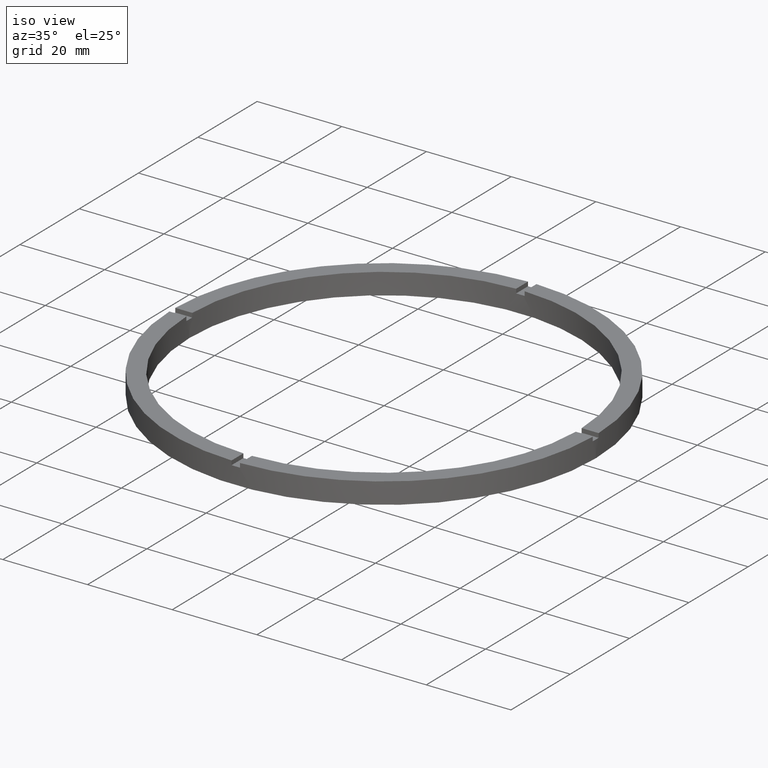
[diagram: clean part render]
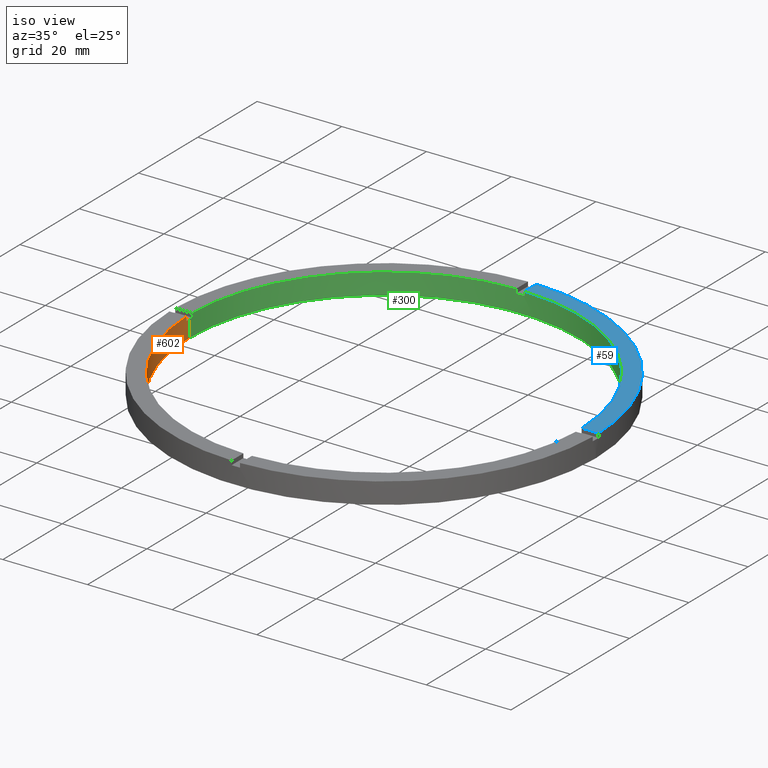
[diagram: same view with three faces highlighted in distinct colors, each labeled with its STEP entity id]
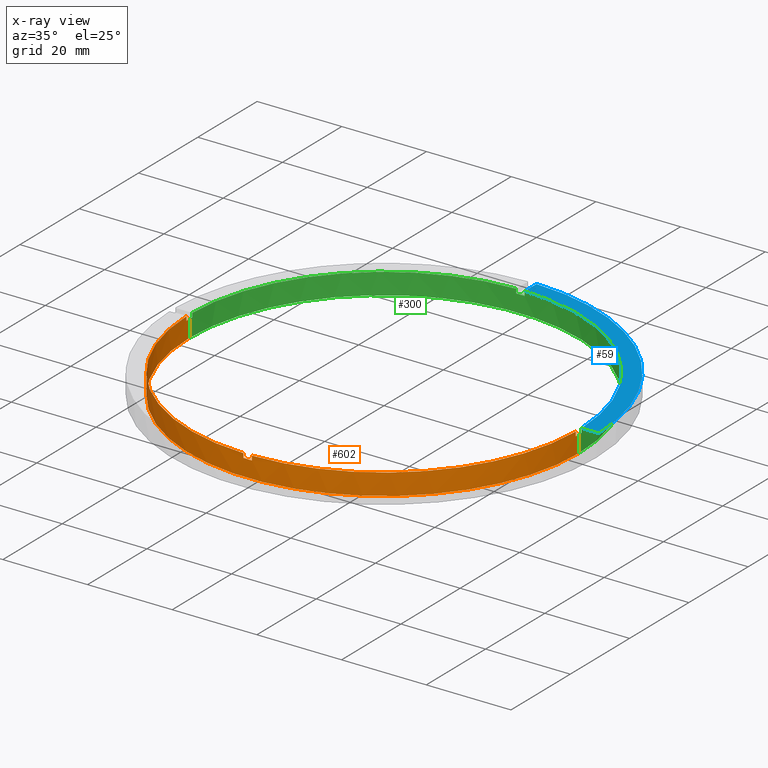
[diagram: x-ray of the same camera — body ghosted, the three highlighted faces saturated]
A machine part, iso view with three faces highlighted in distinct colors.
The next image is the same camera in x-ray (body ghosted, the three faces saturated) — at least one of them is partly hidden behind the body in this view.
Their STEP definitions:

[orange] entity #602 — the highlighted cylindrical surface (partial cylindrical patch) has radius 46 mm, axis along (-0, -0, -1).
#9 = DIRECTION ( 'NONE',  ( -0.000000000000000000, -0.000000000000000000, -1.000000000000000000 ) ) ;
#14 = AXIS2_PLACEMENT_3D ( 'NONE', #475, #694, #90 ) ;
#27 = ORIENTED_EDGE ( 'NONE', *, *, #72, .F. ) ;
#32 = LINE ( 'NONE', #218, #37 ) ;
#34 = CARTESIAN_POINT ( 'NONE',  ( -46.00000000000000000, 0.000000000000000000, 0.000000000000000000 ) ) ;
#37 = VECTOR ( 'NONE', #276, 1000.000000000000000 ) ;
#39 = EDGE_CURVE ( 'NONE', #370, #166, #581, .T. ) ;
#52 = EDGE_CURVE ( 'NONE', #133, #107, #32, .T. ) ;
#58 = DIRECTION ( 'NONE',  ( 1.000000000000000000, 0.000000000000000000, 0.000000000000000000 ) ) ;
#72 = EDGE_CURVE ( 'NONE', #727, #690, #302, .T. ) ;
#79 = AXIS2_PLACEMENT_3D ( 'NONE', #355, #606, #658 ) ;
#81 = CARTESIAN_POINT ( 'NONE',  ( -1.000000000000157208, -45.98912915026767223, 5.000000000000000000 ) ) ;
#83 = CARTESIAN_POINT ( 'NONE',  ( 0.000000000000000000, 0.000000000000000000, 4.000000000000000000 ) ) ;
#88 = CARTESIAN_POINT ( 'NONE',  ( 45.98912915026767223, -1.000000000000155431, 4.000000000000000000 ) ) ;
#90 = DIRECTION ( 'NONE',  ( 1.000000000000000000, 0.000000000000000000, 0.000000000000000000 ) ) ;
#91 = CARTESIAN_POINT ( 'NONE',  ( 0.000000000000000000, 0.000000000000000000, 4.000000000000000000 ) ) ;
#102 = VERTEX_POINT ( 'NONE', #34 ) ;
#107 = VERTEX_POINT ( 'NONE', #461 ) ;
#117 = VERTEX_POINT ( 'NONE', #216 ) ;
#129 = CARTESIAN_POINT ( 'NONE',  ( 46.00000000000000000, 5.633375276077824704E-15, 4.000000000000000000 ) ) ;
#133 = VERTEX_POINT ( 'NONE', #129 ) ;
#138 = DIRECTION ( 'NONE',  ( 1.000000000000000000, 0.000000000000000000, 0.000000000000000000 ) ) ;
#139 = DIRECTION ( 'NONE',  ( 0.000000000000000000, 0.000000000000000000, 1.000000000000000000 ) ) ;
#144 = EDGE_CURVE ( 'NONE', #562, #638, #308, .T. ) ;
#150 = DIRECTION ( 'NONE',  ( 0.000000000000000000, 0.000000000000000000, 1.000000000000000000 ) ) ;
#158 = DIRECTION ( 'NONE',  ( -0.000000000000000000, -0.000000000000000000, -1.000000000000000000 ) ) ;
#166 = VERTEX_POINT ( 'NONE', #81 ) ;
#167 = CIRCLE ( 'NONE', #79, 46.00000000000000000 ) ;
#172 = CARTESIAN_POINT ( 'NONE',  ( -1.000000000000157208, -45.98912915026767223, 5.000000000000000000 ) ) ;
#187 = ORIENTED_EDGE ( 'NONE', *, *, #338, .T. ) ;
#204 = ORIENTED_EDGE ( 'NONE', *, *, #732, .T. ) ;
#216 = CARTESIAN_POINT ( 'NONE',  ( -46.00000000000000000, 0.000000000000000000, 4.000000000000000000 ) ) ;
#218 = CARTESIAN_POINT ( 'NONE',  ( 46.00000000000000000, 5.633375276077824704E-15, 5.000000000000000000 ) ) ;
#228 = CIRCLE ( 'NONE', #266, 46.00000000000000000 ) ;
#231 = LINE ( 'NONE', #172, #232 ) ;
#232 = VECTOR ( 'NONE', #397, 1000.000000000000000 ) ;
#237 = CARTESIAN_POINT ( 'NONE',  ( -45.98912915026767223, -1.000000000000030642, 4.000000000000000000 ) ) ;
#241 = CIRCLE ( 'NONE', #14, 46.00000000000000000 ) ;
#266 = AXIS2_PLACEMENT_3D ( 'NONE', #585, #486, #58 ) ;
#276 = DIRECTION ( 'NONE',  ( -0.000000000000000000, -0.000000000000000000, -1.000000000000000000 ) ) ;
#302 = LINE ( 'NONE', #322, #565 ) ;
#308 = LINE ( 'NONE', #535, #325 ) ;
#322 = CARTESIAN_POINT ( 'NONE',  ( 0.9999999999998427924, -45.98912915026767934, 5.000000000000000000 ) ) ;
#325 = VECTOR ( 'NONE', #150, 1000.000000000000000 ) ;
#338 = EDGE_CURVE ( 'NONE', #562, #133, #778, .T. ) ;
#342 = DIRECTION ( 'NONE',  ( -1.000000000000000000, 0.000000000000000000, 0.000000000000000000 ) ) ;
#348 = DIRECTION ( 'NONE',  ( -0.000000000000000000, -0.000000000000000000, -1.000000000000000000 ) ) ;
#349 = DIRECTION ( 'NONE',  ( 0.000000000000000000, 0.000000000000000000, 1.000000000000000000 ) ) ;
#355 = CARTESIAN_POINT ( 'NONE',  ( 0.000000000000000000, 0.000000000000000000, 4.000000000000000000 ) ) ;
#370 = VERTEX_POINT ( 'NONE', #605 ) ;
#375 = CARTESIAN_POINT ( 'NONE',  ( 0.000000000000000000, 0.000000000000000000, 5.000000000000000000 ) ) ;
#389 = EDGE_CURVE ( 'NONE', #370, #410, #749, .T. ) ;
#396 = EDGE_CURVE ( 'NONE', #399, #166, #231, .T. ) ;
#397 = DIRECTION ( 'NONE',  ( 0.000000000000000000, 0.000000000000000000, 1.000000000000000000 ) ) ;
#399 = VERTEX_POINT ( 'NONE', #601 ) ;
#401 = EDGE_CURVE ( 'NONE', #117, #102, #748, .T. ) ;
#405 = DIRECTION ( 'NONE',  ( 1.000000000000000000, 0.000000000000000000, 0.000000000000000000 ) ) ;
#410 = VERTEX_POINT ( 'NONE', #237 ) ;
#416 = CARTESIAN_POINT ( 'NONE',  ( 0.9999999999998427924, -45.98912915026767934, 4.000000000000000000 ) ) ;
#429 = DIRECTION ( 'NONE',  ( -0.000000000000000000, -0.000000000000000000, -1.000000000000000000 ) ) ;
#437 = ORIENTED_EDGE ( 'NONE', *, *, #396, .F. ) ;
#461 = CARTESIAN_POINT ( 'NONE',  ( 46.00000000000000000, 5.633375276077824704E-15, 0.000000000000000000 ) ) ;
#466 = ORIENTED_EDGE ( 'NONE', *, *, #596, .F. ) ;
#471 = ORIENTED_EDGE ( 'NONE', *, *, #144, .F. ) ;
#475 = CARTESIAN_POINT ( 'NONE',  ( 0.000000000000000000, 0.000000000000000000, 0.000000000000000000 ) ) ;
#486 = DIRECTION ( 'NONE',  ( 0.000000000000000000, 0.000000000000000000, 1.000000000000000000 ) ) ;
#489 = CARTESIAN_POINT ( 'NONE',  ( -46.00000000000000000, 0.000000000000000000, 5.000000000000000000 ) ) ;
#492 = CARTESIAN_POINT ( 'NONE',  ( 0.9999999999998427924, -45.98912915026767934, 5.000000000000000000 ) ) ;
#506 = FACE_OUTER_BOUND ( 'NONE', #703, .T. ) ;
#507 = VECTOR ( 'NONE', #9, 1000.000000000000000 ) ;
#530 = EDGE_CURVE ( 'NONE', #727, #638, #228, .T. ) ;
#535 = CARTESIAN_POINT ( 'NONE',  ( 45.98912915026767223, -1.000000000000155431, 5.000000000000000000 ) ) ;
#556 = AXIS2_PLACEMENT_3D ( 'NONE', #375, #139, #759 ) ;
#561 = ORIENTED_EDGE ( 'NONE', *, *, #530, .T. ) ;
#562 = VERTEX_POINT ( 'NONE', #88 ) ;
#565 = VECTOR ( 'NONE', #429, 1000.000000000000000 ) ;
#581 = CIRCLE ( 'NONE', #556, 46.00000000000000000 ) ;
#585 = CARTESIAN_POINT ( 'NONE',  ( 0.000000000000000000, 0.000000000000000000, 5.000000000000000000 ) ) ;
#591 = EDGE_CURVE ( 'NONE', #399, #690, #760, .T. ) ;
#594 = CARTESIAN_POINT ( 'NONE',  ( 0.000000000000000000, 0.000000000000000000, 5.000000000000000000 ) ) ;
#595 = AXIS2_PLACEMENT_3D ( 'NONE', #83, #735, #138 ) ;
#596 = EDGE_CURVE ( 'NONE', #102, #107, #241, .T. ) ;
#601 = CARTESIAN_POINT ( 'NONE',  ( -1.000000000000157208, -45.98912915026767223, 4.000000000000000000 ) ) ;
#602 = ADVANCED_FACE ( 'NONE', ( #506 ), #766, .F. ) ;
#605 = CARTESIAN_POINT ( 'NONE',  ( -45.98912915026767223, -1.000000000000030642, 5.000000000000000000 ) ) ;
#606 = DIRECTION ( 'NONE',  ( 0.000000000000000000, 0.000000000000000000, 1.000000000000000000 ) ) ;
#625 = AXIS2_PLACEMENT_3D ( 'NONE', #91, #349, #405 ) ;
#630 = ORIENTED_EDGE ( 'NONE', *, *, #52, .T. ) ;
#636 = AXIS2_PLACEMENT_3D ( 'NONE', #594, #158, #342 ) ;
#638 = VERTEX_POINT ( 'NONE', #773 ) ;
#656 = ORIENTED_EDGE ( 'NONE', *, *, #591, .T. ) ;
#658 = DIRECTION ( 'NONE',  ( 1.000000000000000000, 0.000000000000000000, 0.000000000000000000 ) ) ;
#677 = ORIENTED_EDGE ( 'NONE', *, *, #389, .F. ) ;
#681 = ORIENTED_EDGE ( 'NONE', *, *, #401, .F. ) ;
#690 = VERTEX_POINT ( 'NONE', #416 ) ;
#694 = DIRECTION ( 'NONE',  ( 0.000000000000000000, 0.000000000000000000, 1.000000000000000000 ) ) ;
#703 = EDGE_LOOP ( 'NONE', ( #187, #630, #466, #681, #204, #677, #720, #437, #656, #27, #561, #471 ) ) ;
#720 = ORIENTED_EDGE ( 'NONE', *, *, #39, .T. ) ;
#727 = VERTEX_POINT ( 'NONE', #492 ) ;
#732 = EDGE_CURVE ( 'NONE', #117, #410, #167, .T. ) ;
#735 = DIRECTION ( 'NONE',  ( -0.000000000000000000, 0.000000000000000000, 1.000000000000000000 ) ) ;
#747 = CARTESIAN_POINT ( 'NONE',  ( -45.98912915026767223, -1.000000000000030642, 5.000000000000000000 ) ) ;
#748 = LINE ( 'NONE', #489, #507 ) ;
#749 = LINE ( 'NONE', #747, #774 ) ;
#759 = DIRECTION ( 'NONE',  ( 1.000000000000000000, 0.000000000000000000, 0.000000000000000000 ) ) ;
#760 = CIRCLE ( 'NONE', #595, 46.00000000000000000 ) ;
#766 = CYLINDRICAL_SURFACE ( 'NONE', #636, 46.00000000000000000 ) ;
#773 = CARTESIAN_POINT ( 'NONE',  ( 45.98912915026767223, -1.000000000000155431, 5.000000000000000000 ) ) ;
#774 = VECTOR ( 'NONE', #348, 1000.000000000000000 ) ;
#778 = CIRCLE ( 'NONE', #625, 46.00000000000000000 ) ;

[blue] entity #59 — the highlighted planar face has unit normal (0, 0, 1).
#44 = FACE_OUTER_BOUND ( 'NONE', #629, .T. ) ;
#50 = ORIENTED_EDGE ( 'NONE', *, *, #548, .F. ) ;
#59 = ADVANCED_FACE ( 'NONE', ( #44 ), #115, .T. ) ;
#64 = AXIS2_PLACEMENT_3D ( 'NONE', #70, #210, #508 ) ;
#70 = CARTESIAN_POINT ( 'NONE',  ( 0.000000000000000000, 0.000000000000000000, 5.000000000000000000 ) ) ;
#82 = AXIS2_PLACEMENT_3D ( 'NONE', #613, #106, #363 ) ;
#89 = CARTESIAN_POINT ( 'NONE',  ( 0.9999999999999731326, 49.98999899979995121, 5.000000000000000000 ) ) ;
#93 = DIRECTION ( 'NONE',  ( 0.000000000000000000, 1.000000000000000000, 0.000000000000000000 ) ) ;
#106 = DIRECTION ( 'NONE',  ( 0.000000000000000000, 0.000000000000000000, 1.000000000000000000 ) ) ;
#115 = PLANE ( 'NONE',  #82 ) ;
#124 = DIRECTION ( 'NONE',  ( -1.000000000000000000, -6.505213034913025371E-17, -0.000000000000000000 ) ) ;
#132 = VERTEX_POINT ( 'NONE', #693 ) ;
#186 = CARTESIAN_POINT ( 'NONE',  ( 45.98912915026767934, 0.9999999999998445688, 5.000000000000000000 ) ) ;
#210 = DIRECTION ( 'NONE',  ( 0.000000000000000000, 0.000000000000000000, 1.000000000000000000 ) ) ;
#247 = VECTOR ( 'NONE', #124, 1000.000000000000000 ) ;
#249 = CIRCLE ( 'NONE', #347, 50.00000000000000000 ) ;
#273 = EDGE_CURVE ( 'NONE', #696, #132, #323, .T. ) ;
#280 = CARTESIAN_POINT ( 'NONE',  ( 0.9999999999999731326, 40.00000000000000000, 5.000000000000000000 ) ) ;
#296 = ORIENTED_EDGE ( 'NONE', *, *, #360, .T. ) ;
#323 = CIRCLE ( 'NONE', #64, 46.00000000000000000 ) ;
#347 = AXIS2_PLACEMENT_3D ( 'NONE', #542, #480, #780 ) ;
#356 = EDGE_CURVE ( 'NONE', #386, #696, #758, .T. ) ;
#360 = EDGE_CURVE ( 'NONE', #386, #378, #249, .T. ) ;
#363 = DIRECTION ( 'NONE',  ( 1.000000000000000000, 0.000000000000000000, -0.000000000000000000 ) ) ;
#378 = VERTEX_POINT ( 'NONE', #89 ) ;
#386 = VERTEX_POINT ( 'NONE', #545 ) ;
#402 = ORIENTED_EDGE ( 'NONE', *, *, #273, .F. ) ;
#480 = DIRECTION ( 'NONE',  ( 0.000000000000000000, 0.000000000000000000, 1.000000000000000000 ) ) ;
#495 = VECTOR ( 'NONE', #93, 1000.000000000000000 ) ;
#498 = LINE ( 'NONE', #280, #495 ) ;
#508 = DIRECTION ( 'NONE',  ( 1.000000000000000000, 0.000000000000000000, 0.000000000000000000 ) ) ;
#542 = CARTESIAN_POINT ( 'NONE',  ( 0.000000000000000000, 0.000000000000000000, 5.000000000000000000 ) ) ;
#545 = CARTESIAN_POINT ( 'NONE',  ( 49.98999899979995831, 0.9999999999998447908, 5.000000000000000000 ) ) ;
#548 = EDGE_CURVE ( 'NONE', #132, #378, #498, .T. ) ;
#597 = CARTESIAN_POINT ( 'NONE',  ( 39.99999999999999289, 0.9999999999998441247, 5.000000000000000000 ) ) ;
#613 = CARTESIAN_POINT ( 'NONE',  ( 0.000000000000000000, 0.000000000000000000, 5.000000000000000000 ) ) ;
#629 = EDGE_LOOP ( 'NONE', ( #50, #402, #646, #296 ) ) ;
#646 = ORIENTED_EDGE ( 'NONE', *, *, #356, .F. ) ;
#693 = CARTESIAN_POINT ( 'NONE',  ( 0.9999999999999731326, 45.98912915026767223, 5.000000000000000000 ) ) ;
#696 = VERTEX_POINT ( 'NONE', #186 ) ;
#758 = LINE ( 'NONE', #597, #247 ) ;
#780 = DIRECTION ( 'NONE',  ( 1.000000000000000000, 0.000000000000000000, 0.000000000000000000 ) ) ;

[green] entity #300 — the highlighted cylindrical surface (partial cylindrical patch) has radius 46 mm, axis along (-0, -0, -1).
#9 = DIRECTION ( 'NONE',  ( -0.000000000000000000, -0.000000000000000000, -1.000000000000000000 ) ) ;
#10 = CARTESIAN_POINT ( 'NONE',  ( -45.98912915026767223, 0.9999999999999694689, 4.000000000000000000 ) ) ;
#16 = EDGE_CURVE ( 'NONE', #696, #717, #574, .T. ) ;
#18 = CARTESIAN_POINT ( 'NONE',  ( -1.000000000000026867, 45.98912915026767223, 5.000000000000000000 ) ) ;
#21 = CARTESIAN_POINT ( 'NONE',  ( 0.000000000000000000, 0.000000000000000000, 5.000000000000000000 ) ) ;
#29 = CARTESIAN_POINT ( 'NONE',  ( 0.000000000000000000, 0.000000000000000000, 0.000000000000000000 ) ) ;
#30 = EDGE_LOOP ( 'NONE', ( #379, #451, #428, #373, #312, #671, #417, #394, #142, #184, #45, #285 ) ) ;
#32 = LINE ( 'NONE', #218, #37 ) ;
#34 = CARTESIAN_POINT ( 'NONE',  ( -46.00000000000000000, 0.000000000000000000, 0.000000000000000000 ) ) ;
#37 = VECTOR ( 'NONE', #276, 1000.000000000000000 ) ;
#40 = CARTESIAN_POINT ( 'NONE',  ( 0.9999999999999731326, 45.98912915026767223, 4.000000000000000000 ) ) ;
#45 = ORIENTED_EDGE ( 'NONE', *, *, #401, .T. ) ;
#47 = VERTEX_POINT ( 'NONE', #343 ) ;
#48 = EDGE_CURVE ( 'NONE', #133, #717, #554, .T. ) ;
#52 = EDGE_CURVE ( 'NONE', #133, #107, #32, .T. ) ;
#63 = DIRECTION ( 'NONE',  ( 0.000000000000000000, 0.000000000000000000, 1.000000000000000000 ) ) ;
#64 = AXIS2_PLACEMENT_3D ( 'NONE', #70, #210, #508 ) ;
#70 = CARTESIAN_POINT ( 'NONE',  ( 0.000000000000000000, 0.000000000000000000, 5.000000000000000000 ) ) ;
#73 = DIRECTION ( 'NONE',  ( -0.000000000000000000, -0.000000000000000000, -1.000000000000000000 ) ) ;
#95 = VERTEX_POINT ( 'NONE', #136 ) ;
#102 = VERTEX_POINT ( 'NONE', #34 ) ;
#107 = VERTEX_POINT ( 'NONE', #461 ) ;
#117 = VERTEX_POINT ( 'NONE', #216 ) ;
#120 = CARTESIAN_POINT ( 'NONE',  ( -45.98912915026767223, 0.9999999999999694689, 5.000000000000000000 ) ) ;
#129 = CARTESIAN_POINT ( 'NONE',  ( 46.00000000000000000, 5.633375276077824704E-15, 4.000000000000000000 ) ) ;
#132 = VERTEX_POINT ( 'NONE', #693 ) ;
#133 = VERTEX_POINT ( 'NONE', #129 ) ;
#136 = CARTESIAN_POINT ( 'NONE',  ( -45.98912915026767223, 0.9999999999999694689, 5.000000000000000000 ) ) ;
#142 = ORIENTED_EDGE ( 'NONE', *, *, #299, .F. ) ;
#155 = CARTESIAN_POINT ( 'NONE',  ( 0.000000000000000000, 0.000000000000000000, 4.000000000000000000 ) ) ;
#164 = CIRCLE ( 'NONE', #398, 46.00000000000000000 ) ;
#179 = VERTEX_POINT ( 'NONE', #40 ) ;
#184 = ORIENTED_EDGE ( 'NONE', *, *, #434, .T. ) ;
#186 = CARTESIAN_POINT ( 'NONE',  ( 45.98912915026767934, 0.9999999999998445688, 5.000000000000000000 ) ) ;
#189 = DIRECTION ( 'NONE',  ( -1.000000000000000000, 0.000000000000000000, 0.000000000000000000 ) ) ;
#210 = DIRECTION ( 'NONE',  ( 0.000000000000000000, 0.000000000000000000, 1.000000000000000000 ) ) ;
#216 = CARTESIAN_POINT ( 'NONE',  ( -46.00000000000000000, 0.000000000000000000, 4.000000000000000000 ) ) ;
#218 = CARTESIAN_POINT ( 'NONE',  ( 46.00000000000000000, 5.633375276077824704E-15, 5.000000000000000000 ) ) ;
#221 = DIRECTION ( 'NONE',  ( 0.000000000000000000, 0.000000000000000000, 1.000000000000000000 ) ) ;
#236 = CIRCLE ( 'NONE', #383, 46.00000000000000000 ) ;
#239 = LINE ( 'NONE', #120, #252 ) ;
#242 = LINE ( 'NONE', #18, #769 ) ;
#248 = CIRCLE ( 'NONE', #722, 46.00000000000000000 ) ;
#252 = VECTOR ( 'NONE', #742, 1000.000000000000000 ) ;
#270 = EDGE_CURVE ( 'NONE', #47, #95, #584, .T. ) ;
#273 = EDGE_CURVE ( 'NONE', #696, #132, #323, .T. ) ;
#276 = DIRECTION ( 'NONE',  ( -0.000000000000000000, -0.000000000000000000, -1.000000000000000000 ) ) ;
#285 = ORIENTED_EDGE ( 'NONE', *, *, #543, .F. ) ;
#295 = EDGE_CURVE ( 'NONE', #47, #424, #242, .T. ) ;
#299 = EDGE_CURVE ( 'NONE', #672, #95, #239, .T. ) ;
#300 = ADVANCED_FACE ( 'NONE', ( #488 ), #514, .F. ) ;
#306 = DIRECTION ( 'NONE',  ( 1.000000000000000000, 0.000000000000000000, 0.000000000000000000 ) ) ;
#312 = ORIENTED_EDGE ( 'NONE', *, *, #353, .F. ) ;
#323 = CIRCLE ( 'NONE', #64, 46.00000000000000000 ) ;
#327 = CARTESIAN_POINT ( 'NONE',  ( 0.000000000000000000, 0.000000000000000000, 5.000000000000000000 ) ) ;
#343 = CARTESIAN_POINT ( 'NONE',  ( -1.000000000000026867, 45.98912915026767223, 5.000000000000000000 ) ) ;
#352 = DIRECTION ( 'NONE',  ( 1.000000000000000000, 0.000000000000000000, 0.000000000000000000 ) ) ;
#353 = EDGE_CURVE ( 'NONE', #179, #132, #775, .T. ) ;
#357 = DIRECTION ( 'NONE',  ( 1.000000000000000000, 0.000000000000000000, 0.000000000000000000 ) ) ;
#362 = CARTESIAN_POINT ( 'NONE',  ( -1.000000000000026867, 45.98912915026767223, 4.000000000000000000 ) ) ;
#366 = DIRECTION ( 'NONE',  ( -0.000000000000000000, -0.000000000000000000, -1.000000000000000000 ) ) ;
#373 = ORIENTED_EDGE ( 'NONE', *, *, #273, .T. ) ;
#379 = ORIENTED_EDGE ( 'NONE', *, *, #52, .F. ) ;
#382 = CARTESIAN_POINT ( 'NONE',  ( 0.000000000000000000, 0.000000000000000000, 4.000000000000000000 ) ) ;
#383 = AXIS2_PLACEMENT_3D ( 'NONE', #29, #63, #352 ) ;
#394 = ORIENTED_EDGE ( 'NONE', *, *, #270, .T. ) ;
#398 = AXIS2_PLACEMENT_3D ( 'NONE', #609, #422, #357 ) ;
#401 = EDGE_CURVE ( 'NONE', #117, #102, #748, .T. ) ;
#413 = AXIS2_PLACEMENT_3D ( 'NONE', #327, #435, #610 ) ;
#414 = DIRECTION ( 'NONE',  ( 0.000000000000000000, 0.000000000000000000, 1.000000000000000000 ) ) ;
#417 = ORIENTED_EDGE ( 'NONE', *, *, #295, .F. ) ;
#422 = DIRECTION ( 'NONE',  ( 0.000000000000000000, -0.000000000000000000, 1.000000000000000000 ) ) ;
#424 = VERTEX_POINT ( 'NONE', #362 ) ;
#428 = ORIENTED_EDGE ( 'NONE', *, *, #16, .F. ) ;
#434 = EDGE_CURVE ( 'NONE', #672, #117, #248, .T. ) ;
#435 = DIRECTION ( 'NONE',  ( 0.000000000000000000, 0.000000000000000000, 1.000000000000000000 ) ) ;
#451 = ORIENTED_EDGE ( 'NONE', *, *, #48, .T. ) ;
#461 = CARTESIAN_POINT ( 'NONE',  ( 46.00000000000000000, 5.633375276077824704E-15, 0.000000000000000000 ) ) ;
#465 = DIRECTION ( 'NONE',  ( 1.000000000000000000, 0.000000000000000000, 0.000000000000000000 ) ) ;
#487 = VECTOR ( 'NONE', #414, 1000.000000000000000 ) ;
#488 = FACE_OUTER_BOUND ( 'NONE', #30, .T. ) ;
#489 = CARTESIAN_POINT ( 'NONE',  ( -46.00000000000000000, 0.000000000000000000, 5.000000000000000000 ) ) ;
#507 = VECTOR ( 'NONE', #9, 1000.000000000000000 ) ;
#508 = DIRECTION ( 'NONE',  ( 1.000000000000000000, 0.000000000000000000, 0.000000000000000000 ) ) ;
#514 = CYLINDRICAL_SURFACE ( 'NONE', #538, 46.00000000000000000 ) ;
#524 = CARTESIAN_POINT ( 'NONE',  ( 45.98912915026767934, 0.9999999999998445688, 5.000000000000000000 ) ) ;
#538 = AXIS2_PLACEMENT_3D ( 'NONE', #21, #366, #189 ) ;
#543 = EDGE_CURVE ( 'NONE', #107, #102, #236, .T. ) ;
#554 = CIRCLE ( 'NONE', #616, 46.00000000000000000 ) ;
#567 = DIRECTION ( 'NONE',  ( 0.000000000000000000, 0.000000000000000000, 1.000000000000000000 ) ) ;
#574 = LINE ( 'NONE', #524, #575 ) ;
#575 = VECTOR ( 'NONE', #685, 1000.000000000000000 ) ;
#584 = CIRCLE ( 'NONE', #413, 46.00000000000000000 ) ;
#609 = CARTESIAN_POINT ( 'NONE',  ( 0.000000000000000000, 0.000000000000000000, 4.000000000000000000 ) ) ;
#610 = DIRECTION ( 'NONE',  ( 1.000000000000000000, 0.000000000000000000, 0.000000000000000000 ) ) ;
#616 = AXIS2_PLACEMENT_3D ( 'NONE', #382, #221, #465 ) ;
#640 = CARTESIAN_POINT ( 'NONE',  ( 0.9999999999999731326, 45.98912915026767223, 5.000000000000000000 ) ) ;
#671 = ORIENTED_EDGE ( 'NONE', *, *, #689, .T. ) ;
#672 = VERTEX_POINT ( 'NONE', #10 ) ;
#685 = DIRECTION ( 'NONE',  ( -0.000000000000000000, -0.000000000000000000, -1.000000000000000000 ) ) ;
#689 = EDGE_CURVE ( 'NONE', #179, #424, #164, .T. ) ;
#693 = CARTESIAN_POINT ( 'NONE',  ( 0.9999999999999731326, 45.98912915026767223, 5.000000000000000000 ) ) ;
#696 = VERTEX_POINT ( 'NONE', #186 ) ;
#717 = VERTEX_POINT ( 'NONE', #741 ) ;
#722 = AXIS2_PLACEMENT_3D ( 'NONE', #155, #567, #306 ) ;
#741 = CARTESIAN_POINT ( 'NONE',  ( 45.98912915026767934, 0.9999999999998445688, 4.000000000000000000 ) ) ;
#742 = DIRECTION ( 'NONE',  ( 0.000000000000000000, 0.000000000000000000, 1.000000000000000000 ) ) ;
#748 = LINE ( 'NONE', #489, #507 ) ;
#769 = VECTOR ( 'NONE', #73, 1000.000000000000000 ) ;
#775 = LINE ( 'NONE', #640, #487 ) ;